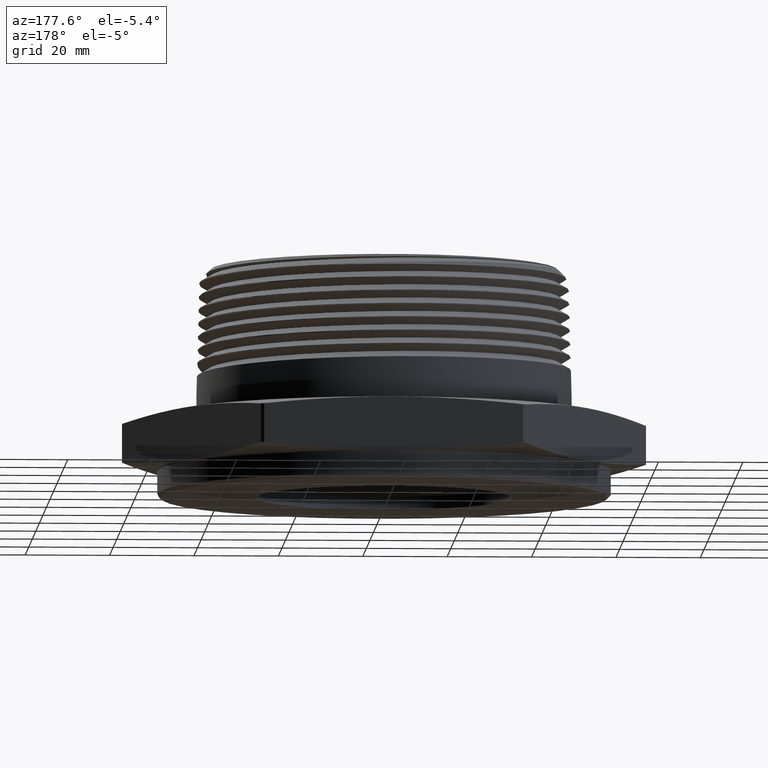
[diagram: clean part render]
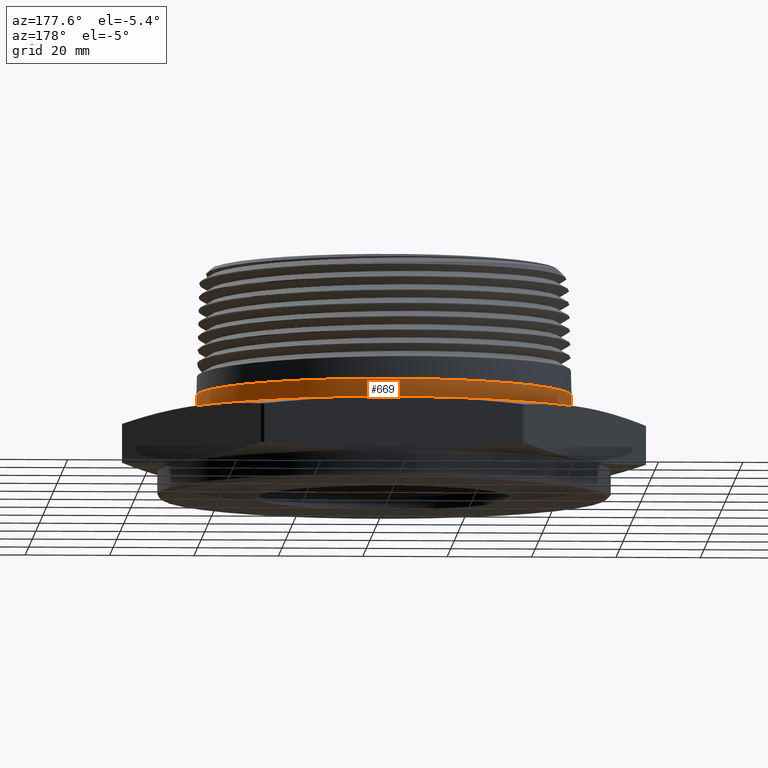
[diagram: same view with one face highlighted and labeled with its STEP entity id]
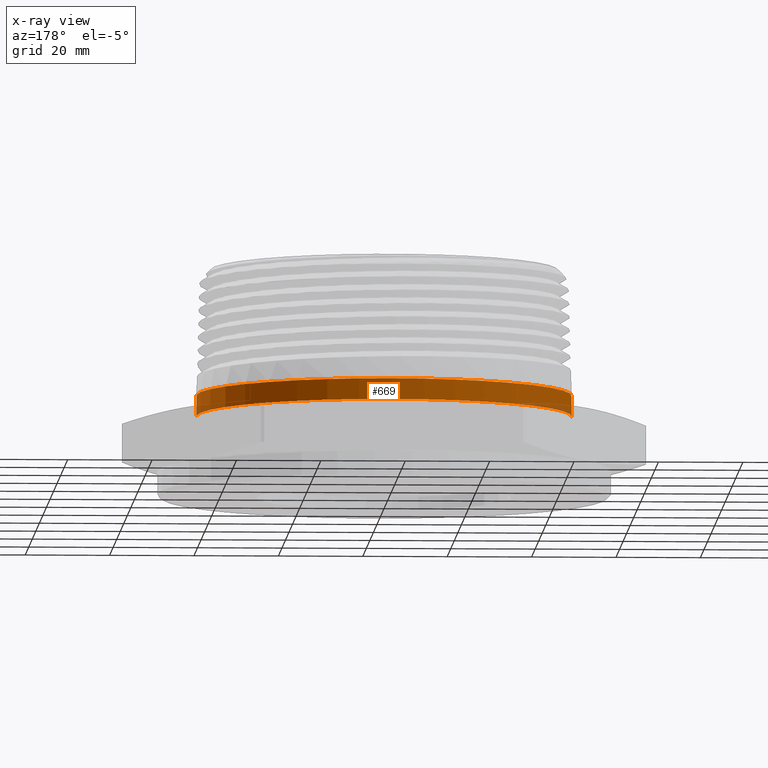
[diagram: x-ray of the same camera — body ghosted, the highlighted face saturated]
A machine part, auxiliary view. The second image highlights one B-rep face of the part: STEP entity #669.
The next image is the same camera in x-ray: the body ghosted, the highlighted face saturated — about 4% of this face is hidden behind the body in this view.
In plain terms, the highlighted cylindrical surface (partial cylindrical patch) has radius 44.45 mm, axis along (-0, -0, -1).
Its self-contained STEP definition (entity closure, byte-faithful):
#669 = ADVANCED_FACE ( 'NONE', ( #6182 ), #6185, .T. ) ;
#1597 = DIRECTION ( 'NONE',  ( -0.0000000000000000000, -0.0000000000000000000, -1.000000000000000000 ) ) ;
#1598 = DIRECTION ( 'NONE',  ( -0.0000000000000000000, -0.0000000000000000000, -1.000000000000000000 ) ) ;
#1599 = CARTESIAN_POINT ( 'NONE',  ( 1.750000000000000000, 2.143131898507868100E-016, 1.879999999999999700 ) ) ;
#1600 = CARTESIAN_POINT ( 'NONE',  ( 0.0000000000000000000, 0.0000000000000000000, 0.7035509999722569000 ) ) ;
#1601 = DIRECTION ( 'NONE',  ( 0.0000000000000000000, 0.0000000000000000000, 1.000000000000000000 ) ) ;
#1602 = DIRECTION ( 'NONE',  ( -1.000000000000000000, 0.0000000000000000000, 0.0000000000000000000 ) ) ;
#1603 = CARTESIAN_POINT ( 'NONE',  ( -1.750000000000000000, 0.0000000000000000000, 1.879999999999999700 ) ) ;
#1605 = CARTESIAN_POINT ( 'NONE',  ( 0.0000000000000000000, 0.0000000000000000000, 0.5100000000000000100 ) ) ;
#1606 = DIRECTION ( 'NONE',  ( -0.0000000000000000000, 0.0000000000000000000, 1.000000000000000000 ) ) ;
#1607 = DIRECTION ( 'NONE',  ( 1.000000000000000000, 0.0000000000000000000, 0.0000000000000000000 ) ) ;
#2227 = CARTESIAN_POINT ( 'NONE',  ( 1.750000000000000000, 2.143131898507867800E-016, 0.7035509999722569000 ) ) ;
#2231 = CARTESIAN_POINT ( 'NONE',  ( -1.750000000000000000, 0.0000000000000000000, 0.7035509999722569000 ) ) ;
#2288 = CARTESIAN_POINT ( 'NONE',  ( 1.750000000000000000, 2.143131898507868100E-016, 0.5100000000000000100 ) ) ;
#2293 = CARTESIAN_POINT ( 'NONE',  ( -1.750000000000000000, 0.0000000000000000000, 0.5100000000000000100 ) ) ;
#3454 = VERTEX_POINT ( 'NONE', #2227 ) ;
#3456 = VERTEX_POINT ( 'NONE', #2231 ) ;
#3516 = VERTEX_POINT ( 'NONE', #2288 ) ;
#3521 = VERTEX_POINT ( 'NONE', #2293 ) ;
#3658 = EDGE_LOOP ( 'NONE', ( #3680, #3681, #3682, #3683 ) ) ;
#3680 = ORIENTED_EDGE ( 'NONE', *, *, #7148, .F. ) ;
#3681 = ORIENTED_EDGE ( 'NONE', *, *, #7149, .T. ) ;
#3682 = ORIENTED_EDGE ( 'NONE', *, *, #7150, .T. ) ;
#3683 = ORIENTED_EDGE ( 'NONE', *, *, #7151, .F. ) ;
#5774 = AXIS2_PLACEMENT_3D ( 'NONE', #6068, #6067, #6069 ) ;
#5840 = AXIS2_PLACEMENT_3D ( 'NONE', #1600, #1601, #1602 ) ;
#5841 = AXIS2_PLACEMENT_3D ( 'NONE', #1605, #1606, #1607 ) ;
#6067 = DIRECTION ( 'NONE',  ( -0.0000000000000000000, -0.0000000000000000000, -1.000000000000000000 ) ) ;
#6068 = CARTESIAN_POINT ( 'NONE',  ( 0.0000000000000000000, 0.0000000000000000000, 1.879999999999999700 ) ) ;
#6069 = DIRECTION ( 'NONE',  ( -1.000000000000000000, 0.0000000000000000000, 0.0000000000000000000 ) ) ;
#6182 = FACE_OUTER_BOUND ( 'NONE', #3658, .T. ) ;
#6185 = CYLINDRICAL_SURFACE ( 'NONE', #5774, 1.750000000000000000 ) ;
#6319 = CIRCLE ( 'NONE', #5840, 1.750000000000000000 ) ;
#6323 = LINE ( 'NONE', #1599, #6327 ) ;
#6325 = CIRCLE ( 'NONE', #5841, 1.750000000000000000 ) ;
#6327 = VECTOR ( 'NONE', #1597, 39.37007874015748100 ) ;
#6328 = LINE ( 'NONE', #1603, #6330 ) ;
#6330 = VECTOR ( 'NONE', #1598, 39.37007874015748100 ) ;
#7148 = EDGE_CURVE ( 'NONE', #3454, #3456, #6319, .T. ) ;
#7149 = EDGE_CURVE ( 'NONE', #3454, #3516, #6323, .T. ) ;
#7150 = EDGE_CURVE ( 'NONE', #3516, #3521, #6325, .T. ) ;
#7151 = EDGE_CURVE ( 'NONE', #3456, #3521, #6328, .T. ) ;